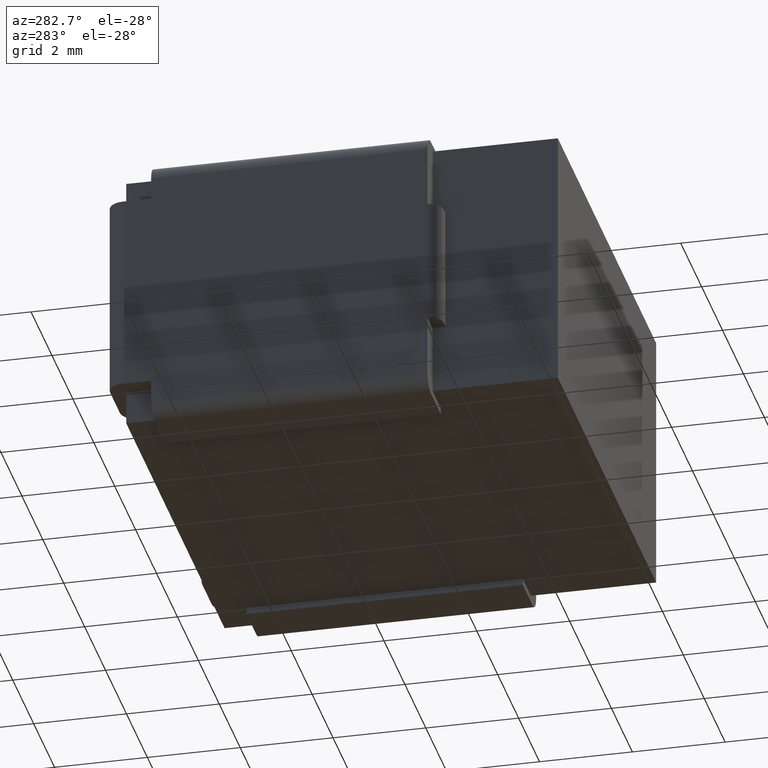
[diagram: clean part render]
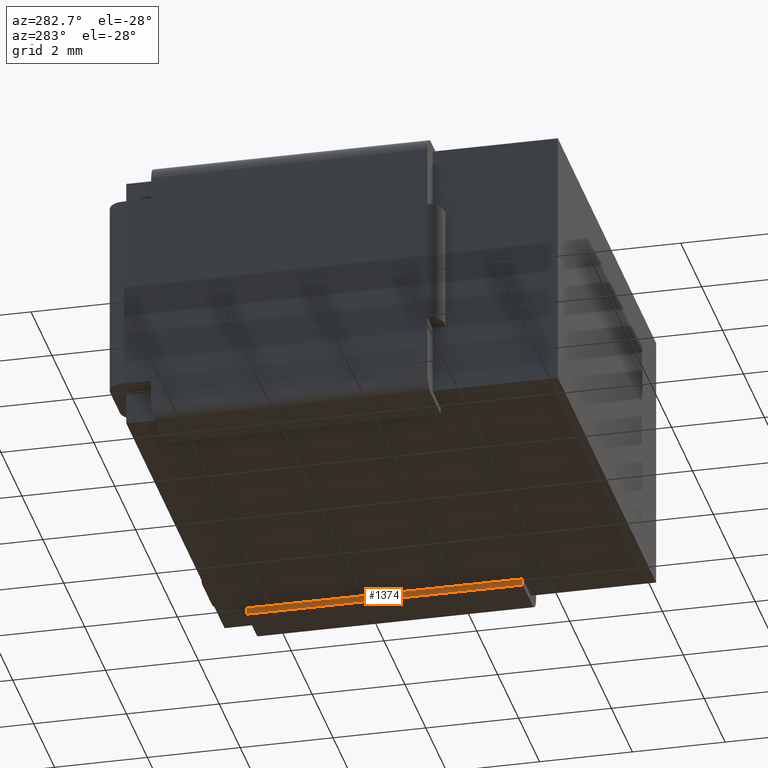
[diagram: same view with one face highlighted and labeled with its STEP entity id]
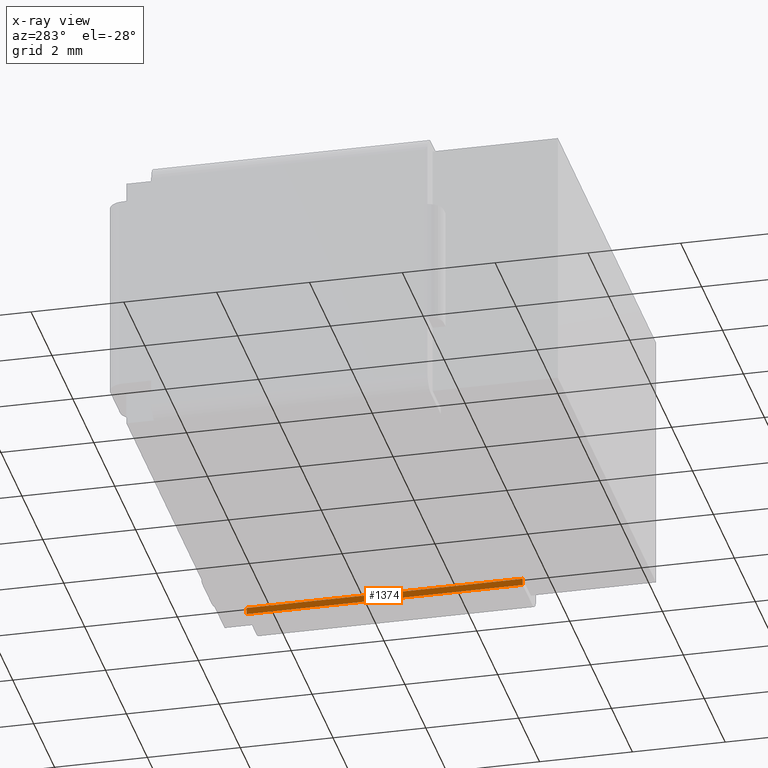
[diagram: x-ray of the same camera — body ghosted, the highlighted face saturated]
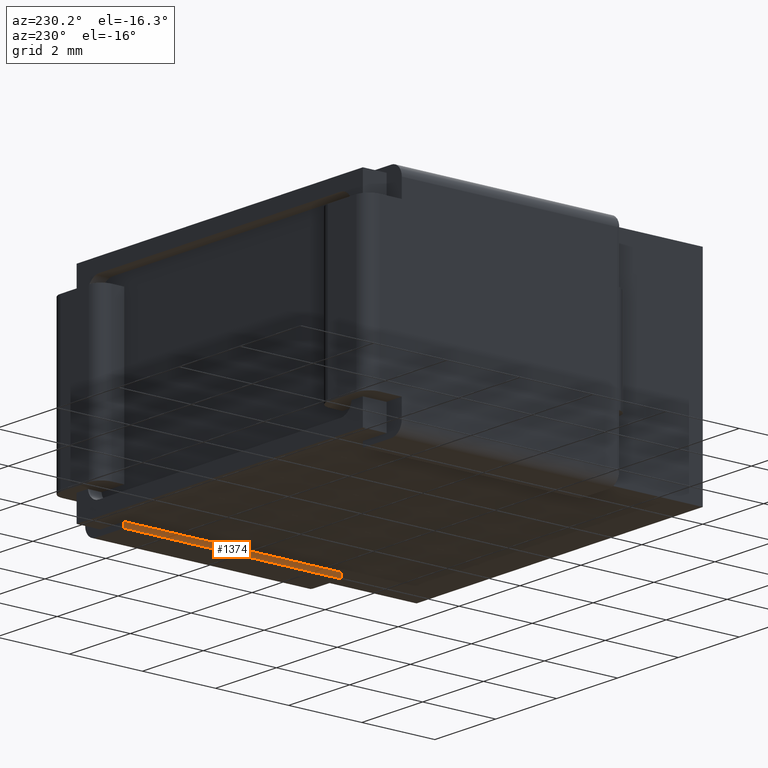
[diagram: same view with one face highlighted and labeled with its STEP entity id]
A machine part, auxiliary view. The second image highlights one B-rep face of the part: STEP entity #1374.
The next image is the same camera in x-ray: the body ghosted, the highlighted face saturated — about 0% of this face is hidden behind the body in this view.
A second angle (auxiliary view) of the same face is appended — the face is thin or edge-on in the first view.
In plain terms, the highlighted planar face has unit normal (1, 0, -0).
Its self-contained STEP definition (entity closure, byte-faithful):
#166 = ORIENTED_EDGE ( 'NONE', *, *, #3098, .F. ) ;
#293 = VERTEX_POINT ( 'NONE', #3548 ) ;
#308 = LINE ( 'NONE', #4226, #1183 ) ;
#563 = DIRECTION ( 'NONE',  ( 1.000000000000000000, 0.000000000000000000, -0.000000000000000000 ) ) ;
#595 = VERTEX_POINT ( 'NONE', #3170 ) ;
#792 = ORIENTED_EDGE ( 'NONE', *, *, #3802, .T. ) ;
#893 = EDGE_CURVE ( 'NONE', #1756, #595, #3189, .T. ) ;
#929 = CARTESIAN_POINT ( 'NONE',  ( 8.622807017543857810, 8.650989808689432792, -5.845562937796240810 ) ) ;
#1026 = LINE ( 'NONE', #4240, #2440 ) ;
#1051 = DIRECTION ( 'NONE',  ( 0.000000000000000000, 0.000000000000000000, 1.000000000000000000 ) ) ;
#1054 = CARTESIAN_POINT ( 'NONE',  ( 8.622807017543857810, 8.650989808689432792, -5.700000000000000178 ) ) ;
#1183 = VECTOR ( 'NONE', #2505, 1000.000000000000000 ) ;
#1374 = ADVANCED_FACE ( 'NONE', ( #2412 ), #3475, .F. ) ;
#1756 = VERTEX_POINT ( 'NONE', #4265 ) ;
#2005 = EDGE_CURVE ( 'NONE', #4130, #293, #2322, .T. ) ;
#2069 = DIRECTION ( 'NONE',  ( 0.000000000000000000, -1.000000000000000000, 0.000000000000000000 ) ) ;
#2322 = LINE ( 'NONE', #929, #3144 ) ;
#2412 = FACE_OUTER_BOUND ( 'NONE', #3925, .T. ) ;
#2440 = VECTOR ( 'NONE', #1051, 1000.000000000000000 ) ;
#2505 = DIRECTION ( 'NONE',  ( 0.000000000000000000, 0.000000000000000000, 1.000000000000000000 ) ) ;
#2624 = ORIENTED_EDGE ( 'NONE', *, *, #2005, .T. ) ;
#3098 = EDGE_CURVE ( 'NONE', #4130, #1756, #1026, .T. ) ;
#3144 = VECTOR ( 'NONE', #4127, 1000.000000000000000 ) ;
#3170 = CARTESIAN_POINT ( 'NONE',  ( 8.622807017543857810, 2.698989808689431946, -5.700000000000000178 ) ) ;
#3189 = LINE ( 'NONE', #1054, #3515 ) ;
#3383 = CARTESIAN_POINT ( 'NONE',  ( 8.622807017543857810, 8.650989808689432792, -5.845562937796240810 ) ) ;
#3475 = PLANE ( 'NONE',  #4573 ) ;
#3515 = VECTOR ( 'NONE', #2069, 1000.000000000000000 ) ;
#3548 = CARTESIAN_POINT ( 'NONE',  ( 8.622807017543857810, 2.698989808689431946, -5.845562937796240810 ) ) ;
#3608 = ORIENTED_EDGE ( 'NONE', *, *, #893, .F. ) ;
#3802 = EDGE_CURVE ( 'NONE', #293, #595, #308, .T. ) ;
#3925 = EDGE_LOOP ( 'NONE', ( #792, #3608, #166, #2624 ) ) ;
#4127 = DIRECTION ( 'NONE',  ( 0.000000000000000000, -1.000000000000000000, 0.000000000000000000 ) ) ;
#4130 = VERTEX_POINT ( 'NONE', #4262 ) ;
#4182 = DIRECTION ( 'NONE',  ( -0.000000000000000000, 0.000000000000000000, -1.000000000000000000 ) ) ;
#4226 = CARTESIAN_POINT ( 'NONE',  ( 8.622807017543857810, 2.698989808689431946, -5.845562937796240810 ) ) ;
#4240 = CARTESIAN_POINT ( 'NONE',  ( 8.622807017543857810, 8.650989808689432792, -5.845562937796240810 ) ) ;
#4262 = CARTESIAN_POINT ( 'NONE',  ( 8.622807017543857810, 8.650989808689432792, -5.845562937796240810 ) ) ;
#4265 = CARTESIAN_POINT ( 'NONE',  ( 8.622807017543857810, 8.650989808689432792, -5.700000000000000178 ) ) ;
#4573 = AXIS2_PLACEMENT_3D ( 'NONE', #3383, #563, #4182 ) ;